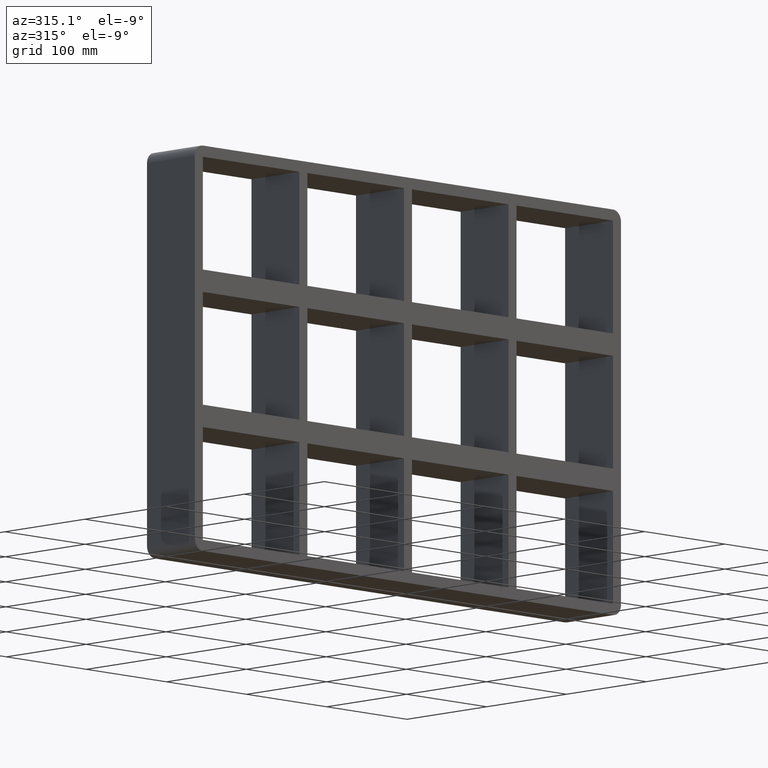
[diagram: clean part render]
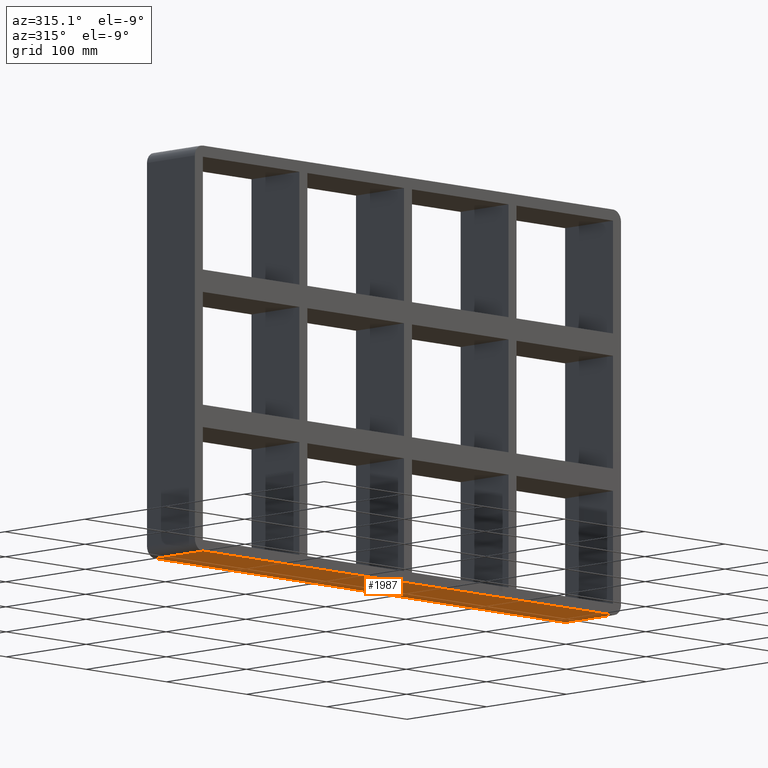
[diagram: same view with one face highlighted and labeled with its STEP entity id]
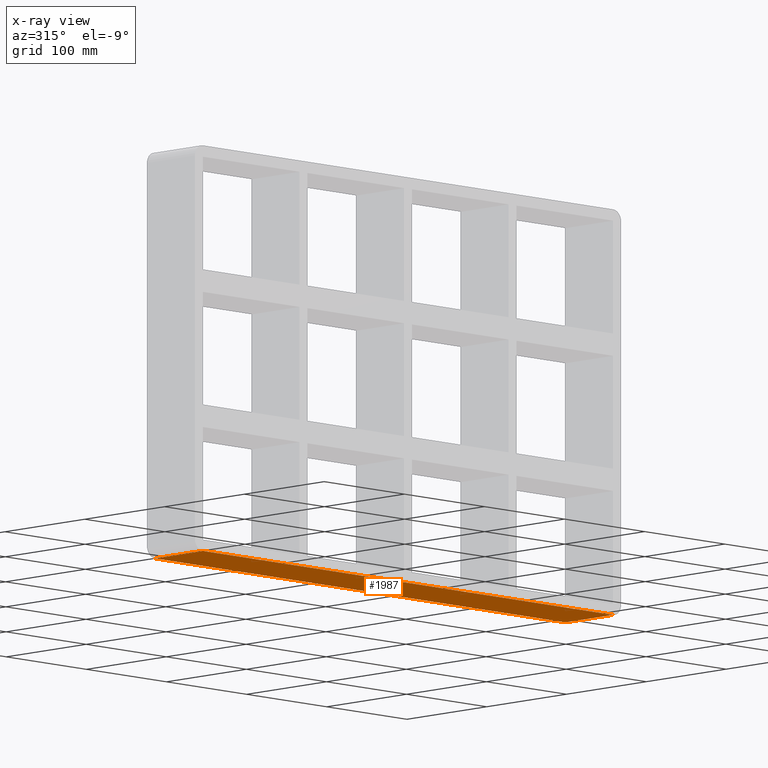
[diagram: x-ray of the same camera — body ghosted, the highlighted face saturated]
A machine part, auxiliary view. The second image highlights one B-rep face of the part: STEP entity #1987.
The next image is the same camera in x-ray: the body ghosted, the highlighted face saturated — about 0% of this face is hidden behind the body in this view.
In plain terms, the highlighted planar face has unit normal (0, 0, -1).
Its self-contained STEP definition (entity closure, byte-faithful):
#703=CARTESIAN_POINT('',(255.99999999999997,57.0,-181.50000000000003));
#704=VERTEX_POINT('',#703);
#714=CARTESIAN_POINT('',(-256.00000000000006,57.0,-181.50000000000003));
#715=VERTEX_POINT('',#714);
#716=CARTESIAN_POINT('',(256.0,57.0,-181.50000000000003));
#717=DIRECTION('',(-1.0,0.0,0.0));
#718=VECTOR('',#717,512.0);
#719=LINE('',#716,#718);
#720=EDGE_CURVE('',#704,#715,#719,.T.);
#1332=CARTESIAN_POINT('',(255.99999999999997,-3.0,-181.50000000000003));
#1333=VERTEX_POINT('',#1332);
#1383=CARTESIAN_POINT('',(-256.00000000000006,-3.0,-181.50000000000003));
#1384=VERTEX_POINT('',#1383);
#1392=CARTESIAN_POINT('',(-256.0,-3.0,-181.50000000000003));
#1393=DIRECTION('',(1.0,0.0,0.0));
#1394=VECTOR('',#1393,512.0);
#1395=LINE('',#1392,#1394);
#1396=EDGE_CURVE('',#1384,#1333,#1395,.T.);
#1853=CARTESIAN_POINT('',(255.99999999999997,-3.0,-181.50000000000003));
#1854=DIRECTION('',(0.0,1.0,0.0));
#1855=VECTOR('',#1854,60.0);
#1856=LINE('',#1853,#1855);
#1857=EDGE_CURVE('',#1333,#704,#1856,.T.);
#1902=CARTESIAN_POINT('',(-256.00000000000006,57.0,-181.50000000000003));
#1903=DIRECTION('',(0.0,-1.0,0.0));
#1904=VECTOR('',#1903,60.0);
#1905=LINE('',#1902,#1904);
#1906=EDGE_CURVE('',#715,#1384,#1905,.T.);
#1976=CARTESIAN_POINT('',(266.0,0.0,-181.50000000000003));
#1977=DIRECTION('',(0.0,0.0,-1.0));
#1978=DIRECTION('',(-1.0,0.0,0.0));
#1979=AXIS2_PLACEMENT_3D('',#1976,#1977,#1978);
#1980=PLANE('',#1979);
#1981=ORIENTED_EDGE('',*,*,#1857,.F.);
#1982=ORIENTED_EDGE('',*,*,#1396,.F.);
#1983=ORIENTED_EDGE('',*,*,#1906,.F.);
#1984=ORIENTED_EDGE('',*,*,#720,.F.);
#1985=EDGE_LOOP('',(#1981,#1982,#1983,#1984));
#1986=FACE_OUTER_BOUND('',#1985,.T.);
#1987=ADVANCED_FACE('',(#1986),#1980,.T.);